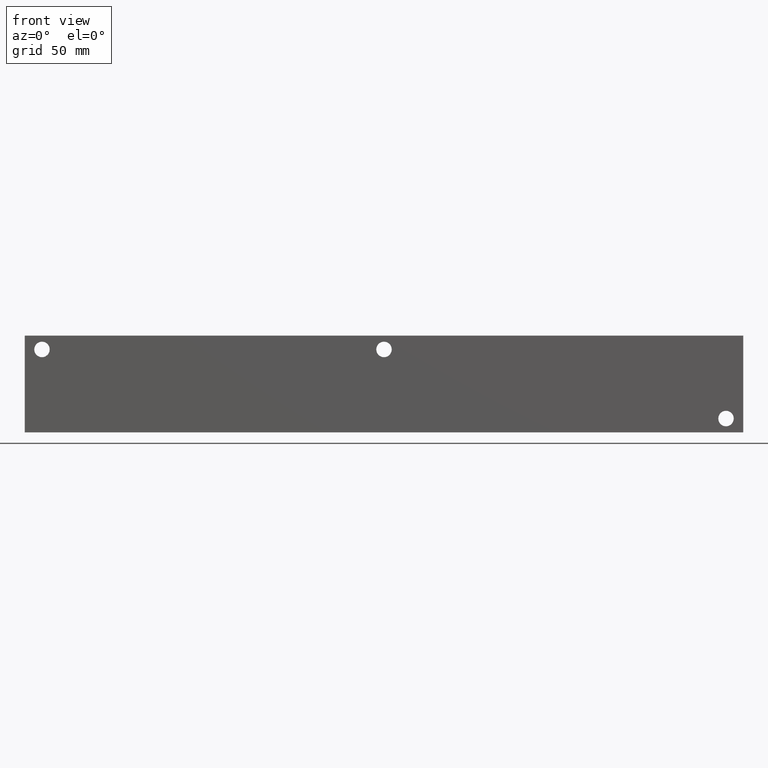
[diagram: clean part render]
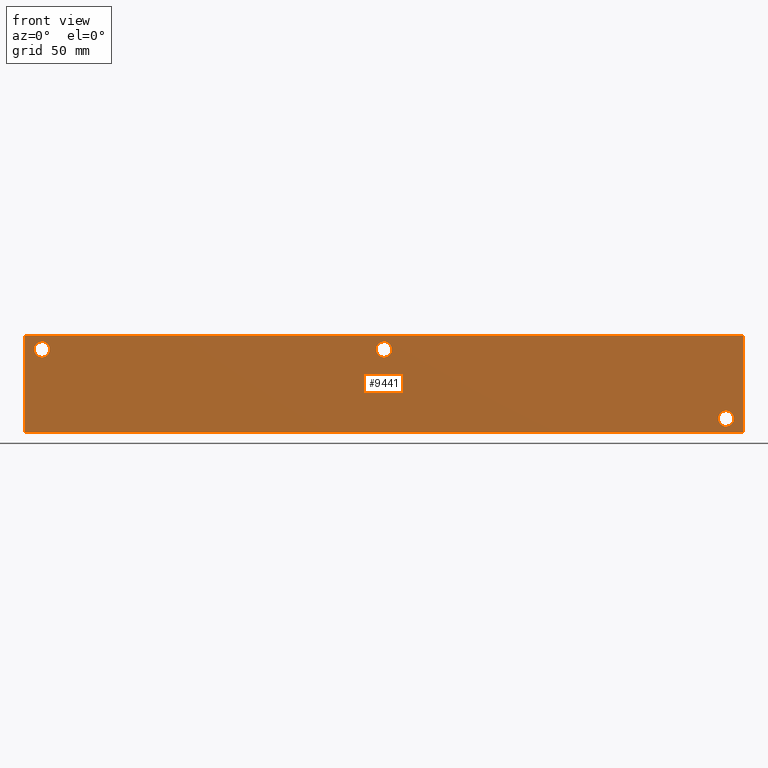
[diagram: same view with one face highlighted and labeled with its STEP entity id]
A machine part, front view. The second image highlights one B-rep face of the part: STEP entity #9441.
In plain terms, the highlighted planar face has unit normal (0, -1, 0).
Its self-contained STEP definition (entity closure, byte-faithful):
#302=CIRCLE('',#9865,3.5687);
#303=CIRCLE('',#9866,3.5687);
#305=CIRCLE('',#9874,3.5687);
#306=CIRCLE('',#9875,3.5687);
#308=CIRCLE('',#9883,3.5687);
#309=CIRCLE('',#9884,3.5687);
#527=FACE_BOUND('',#1828,.T.);
#528=FACE_BOUND('',#1829,.T.);
#529=FACE_BOUND('',#1830,.T.);
#772=PLANE('',#10133);
#1264=FACE_OUTER_BOUND('',#1827,.T.);
#1827=EDGE_LOOP('',(#8491,#8492,#8493,#8494));
#1828=EDGE_LOOP('',(#8495,#8496));
#1829=EDGE_LOOP('',(#8497,#8498));
#1830=EDGE_LOOP('',(#8499,#8500));
#2102=LINE('',#14685,#2889);
#2622=LINE('',#16511,#3409);
#2627=LINE('',#16520,#3414);
#2628=LINE('',#16522,#3415);
#2889=VECTOR('',#10520,10.);
#3409=VECTOR('',#12264,10.);
#3414=VECTOR('',#12273,10.);
#3415=VECTOR('',#12276,10.);
#3972=VERTEX_POINT('',#14683);
#3973=VERTEX_POINT('',#14684);
#4376=VERTEX_POINT('',#15996);
#4377=VERTEX_POINT('',#15997);
#4381=VERTEX_POINT('',#16012);
#4382=VERTEX_POINT('',#16013);
#4386=VERTEX_POINT('',#16028);
#4387=VERTEX_POINT('',#16029);
#4539=VERTEX_POINT('',#16509);
#4541=VERTEX_POINT('',#16518);
#5022=EDGE_CURVE('',#3972,#3973,#2102,.T.);
#5611=EDGE_CURVE('',#4376,#4377,#302,.T.);
#5612=EDGE_CURVE('',#4377,#4376,#303,.T.);
#5620=EDGE_CURVE('',#4381,#4382,#305,.T.);
#5621=EDGE_CURVE('',#4382,#4381,#306,.T.);
#5629=EDGE_CURVE('',#4386,#4387,#308,.T.);
#5630=EDGE_CURVE('',#4387,#4386,#309,.T.);
#5862=EDGE_CURVE('',#4539,#3972,#2622,.T.);
#5867=EDGE_CURVE('',#4541,#3973,#2627,.T.);
#5868=EDGE_CURVE('',#4539,#4541,#2628,.T.);
#8491=ORIENTED_EDGE('',*,*,#5868,.T.);
#8492=ORIENTED_EDGE('',*,*,#5867,.T.);
#8493=ORIENTED_EDGE('',*,*,#5022,.F.);
#8494=ORIENTED_EDGE('',*,*,#5862,.F.);
#8495=ORIENTED_EDGE('',*,*,#5611,.T.);
#8496=ORIENTED_EDGE('',*,*,#5612,.T.);
#8497=ORIENTED_EDGE('',*,*,#5620,.T.);
#8498=ORIENTED_EDGE('',*,*,#5621,.T.);
#8499=ORIENTED_EDGE('',*,*,#5629,.T.);
#8500=ORIENTED_EDGE('',*,*,#5630,.T.);
#9441=ADVANCED_FACE('',(#1264,#527,#528,#529),#772,.T.);
#9865=AXIS2_PLACEMENT_3D('',#15998,#11647,#11648);
#9866=AXIS2_PLACEMENT_3D('',#15999,#11649,#11650);
#9874=AXIS2_PLACEMENT_3D('',#16014,#11667,#11668);
#9875=AXIS2_PLACEMENT_3D('',#16015,#11669,#11670);
#9883=AXIS2_PLACEMENT_3D('',#16030,#11687,#11688);
#9884=AXIS2_PLACEMENT_3D('',#16031,#11689,#11690);
#10133=AXIS2_PLACEMENT_3D('',#16521,#12274,#12275);
#10520=DIRECTION('',(1.,0.,0.));
#11647=DIRECTION('center_axis',(0.,1.,0.));
#11648=DIRECTION('ref_axis',(1.,0.,0.));
#11649=DIRECTION('center_axis',(0.,1.,0.));
#11650=DIRECTION('ref_axis',(1.,0.,0.));
#11667=DIRECTION('center_axis',(0.,1.,0.));
#11668=DIRECTION('ref_axis',(1.,0.,0.));
#11669=DIRECTION('center_axis',(0.,1.,0.));
#11670=DIRECTION('ref_axis',(1.,0.,0.));
#11687=DIRECTION('center_axis',(0.,1.,0.));
#11688=DIRECTION('ref_axis',(1.,0.,0.));
#11689=DIRECTION('center_axis',(0.,1.,0.));
#11690=DIRECTION('ref_axis',(1.,0.,0.));
#12264=DIRECTION('',(0.,0.,1.));
#12273=DIRECTION('',(0.,0.,1.));
#12274=DIRECTION('center_axis',(0.,-1.,0.));
#12275=DIRECTION('ref_axis',(1.,0.,0.));
#12276=DIRECTION('',(1.,0.,0.));
#14683=CARTESIAN_POINT('',(0.,0.,44.45));
#14684=CARTESIAN_POINT('',(330.2,0.,44.45));
#14685=CARTESIAN_POINT('',(0.,0.,44.45));
#15996=CARTESIAN_POINT('',(168.6687,0.,38.1));
#15997=CARTESIAN_POINT('',(161.5313,0.,38.1));
#15998=CARTESIAN_POINT('Origin',(165.1,0.,38.1));
#15999=CARTESIAN_POINT('Origin',(165.1,0.,38.1));
#16012=CARTESIAN_POINT('',(11.4935,0.,38.1));
#16013=CARTESIAN_POINT('',(4.3561,0.,38.1));
#16014=CARTESIAN_POINT('Origin',(7.9248,0.,38.1));
#16015=CARTESIAN_POINT('Origin',(7.9248,0.,38.1));
#16028=CARTESIAN_POINT('',(325.8439,0.,6.35));
#16029=CARTESIAN_POINT('',(318.7065,0.,6.35));
#16030=CARTESIAN_POINT('Origin',(322.2752,0.,6.35));
#16031=CARTESIAN_POINT('Origin',(322.2752,0.,6.35));
#16509=CARTESIAN_POINT('',(0.,0.,0.));
#16511=CARTESIAN_POINT('',(0.,0.,0.));
#16518=CARTESIAN_POINT('',(330.2,0.,0.));
#16520=CARTESIAN_POINT('',(330.2,0.,0.));
#16521=CARTESIAN_POINT('Origin',(0.,0.,0.));
#16522=CARTESIAN_POINT('',(0.,0.,0.));